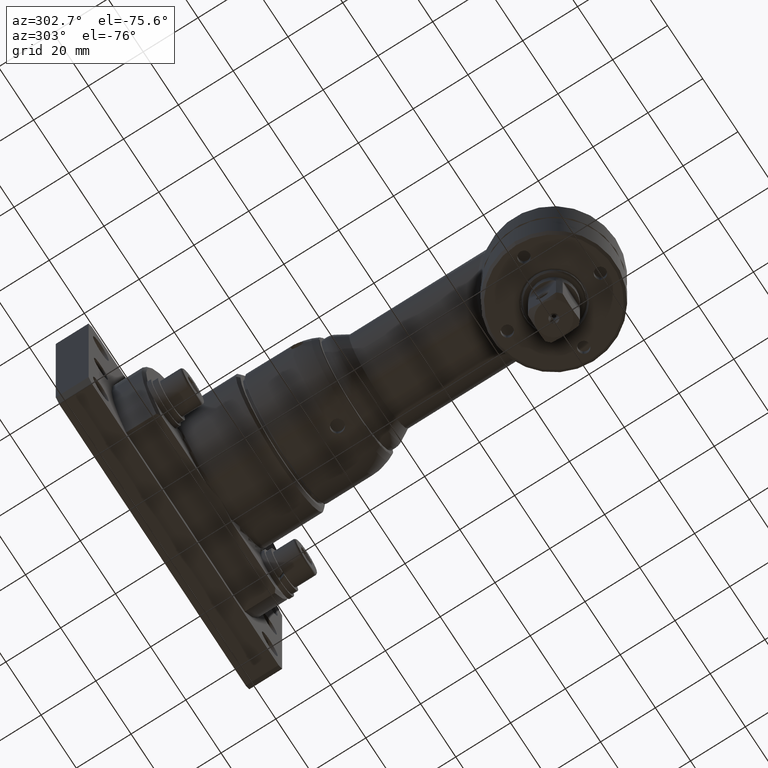
[diagram: clean part render]
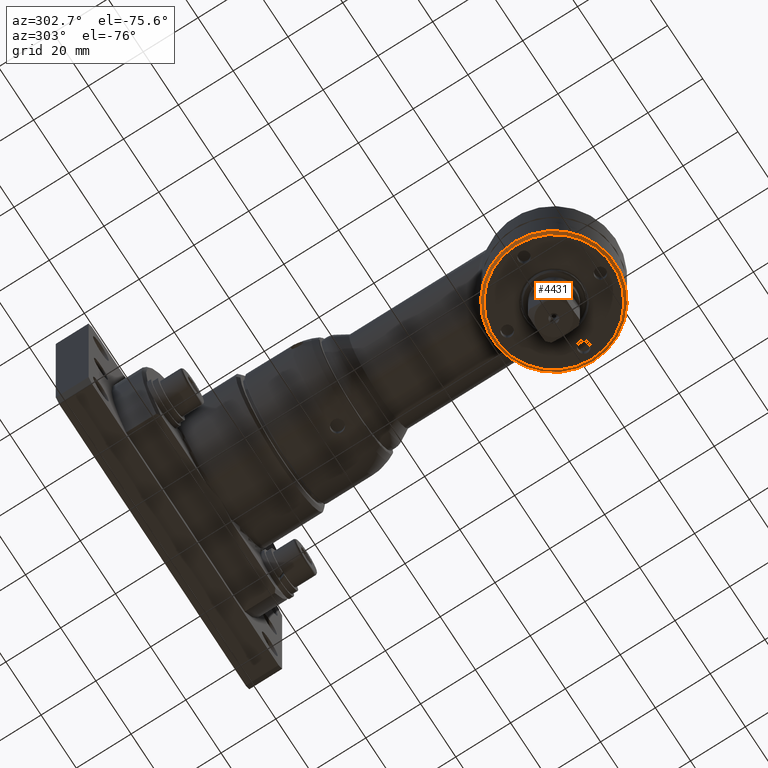
[diagram: same view with one face highlighted and labeled with its STEP entity id]
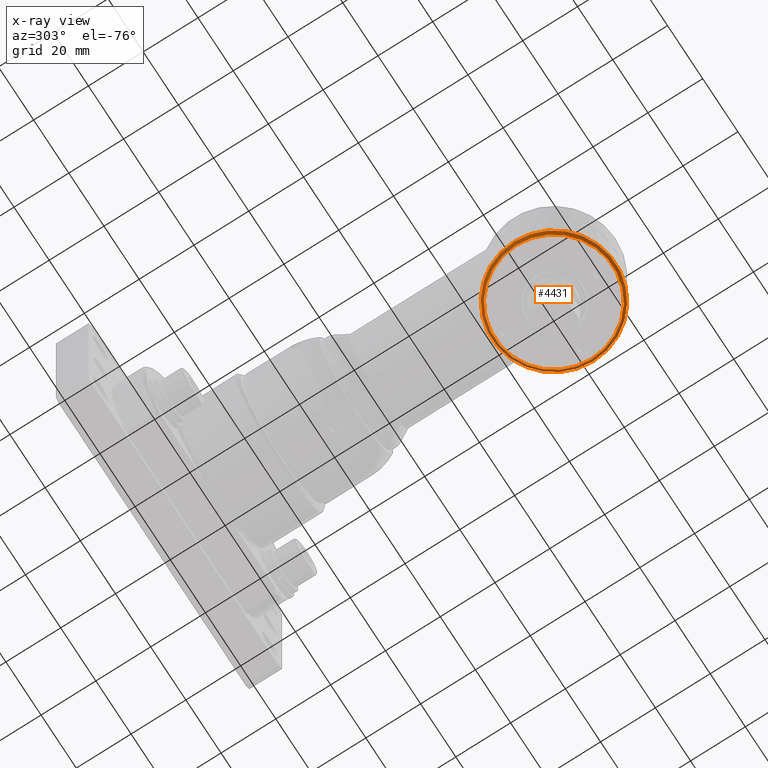
[diagram: x-ray of the same camera — body ghosted, the highlighted face saturated]
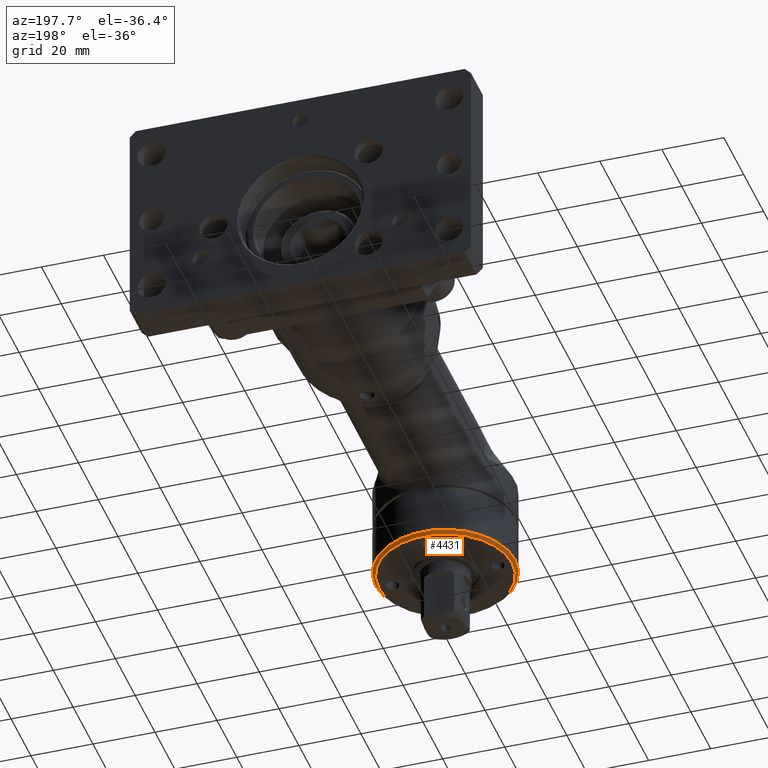
[diagram: same view with one face highlighted and labeled with its STEP entity id]
A machine part, auxiliary view. The second image highlights one B-rep face of the part: STEP entity #4431.
The next image is the same camera in x-ray: the body ghosted, the highlighted face saturated — about 0% of this face is hidden behind the body in this view.
A second angle (auxiliary view) of the same face is appended — the face is thin or edge-on in the first view.
In plain terms, the highlighted conical surface has half-angle 45 deg.
Its self-contained STEP definition (entity closure, byte-faithful):
#161=CONICAL_SURFACE('',#4804,22.,0.785398163397449);
#223=LINE('',#8176,#436);
#436=VECTOR('',#5659,22.);
#815=FACE_OUTER_BOUND('',#1078,.T.);
#1078=EDGE_LOOP('',(#3263,#3264,#3265,#3266,#3267));
#1409=CIRCLE('',#4805,22.5);
#1410=CIRCLE('',#4806,22.5);
#1411=CIRCLE('',#4807,21.5);
#1831=VERTEX_POINT('',#8171);
#1832=VERTEX_POINT('',#8172);
#1833=VERTEX_POINT('',#8175);
#2363=EDGE_CURVE('',#1831,#1832,#1409,.T.);
#2364=EDGE_CURVE('',#1832,#1831,#1410,.T.);
#2365=EDGE_CURVE('',#1831,#1833,#223,.T.);
#2366=EDGE_CURVE('',#1833,#1833,#1411,.T.);
#3263=ORIENTED_EDGE('',*,*,#2363,.T.);
#3264=ORIENTED_EDGE('',*,*,#2364,.T.);
#3265=ORIENTED_EDGE('',*,*,#2365,.T.);
#3266=ORIENTED_EDGE('',*,*,#2366,.T.);
#3267=ORIENTED_EDGE('',*,*,#2365,.F.);
#4431=ADVANCED_FACE('',(#815),#161,.T.);
#4804=AXIS2_PLACEMENT_3D('',#8170,#5653,#5654);
#4805=AXIS2_PLACEMENT_3D('',#8173,#5655,#5656);
#4806=AXIS2_PLACEMENT_3D('',#8174,#5657,#5658);
#4807=AXIS2_PLACEMENT_3D('',#8177,#5660,#5661);
#5653=DIRECTION('center_axis',(-2.44038375249505E-15,1.88737914186277E-15,
1.));
#5654=DIRECTION('ref_axis',(1.,4.36853639744295E-17,2.44038375249505E-15));
#5655=DIRECTION('center_axis',(2.44038375249505E-15,-1.88737914186277E-15,
-1.));
#5656=DIRECTION('ref_axis',(1.,4.36853639744295E-17,2.44038375249505E-15));
#5657=DIRECTION('center_axis',(2.44038375249505E-15,-1.88737914186277E-15,
-1.));
#5658=DIRECTION('ref_axis',(1.,4.36853639744295E-17,2.44038375249505E-15));
#5659=DIRECTION('',(0.70710678118655,-1.21709276715274E-15,-0.707106781186545));
#5660=DIRECTION('center_axis',(-2.44038375249505E-15,1.88737914186277E-15,
1.));
#5661=DIRECTION('ref_axis',(1.,4.36853639744295E-17,2.44038375249505E-15));
#8170=CARTESIAN_POINT('Origin',(3.24976894064031E-15,9.43689570931355E-16,
-35.9999999999998));
#8171=CARTESIAN_POINT('',(-22.5,3.65991375051962E-15,-35.4999999999998));
#8172=CARTESIAN_POINT('',(22.5,5.62575512936895E-15,-35.4999999999997));
#8173=CARTESIAN_POINT('Origin',(2.02957706439279E-15,1.88737914186274E-15,
-35.4999999999998));
#8174=CARTESIAN_POINT('Origin',(2.02957706439279E-15,1.88737914186274E-15,
-35.4999999999998));
#8175=CARTESIAN_POINT('',(-21.5,-3.57222594361708E-15,-36.4999999999998));
#8176=CARTESIAN_POINT('',(-22.,-2.71161139463027E-15,-35.9999999999998));
#8177=CARTESIAN_POINT('Origin',(4.46996081688784E-15,-3.23016245428834E-29,
-36.4999999999998));